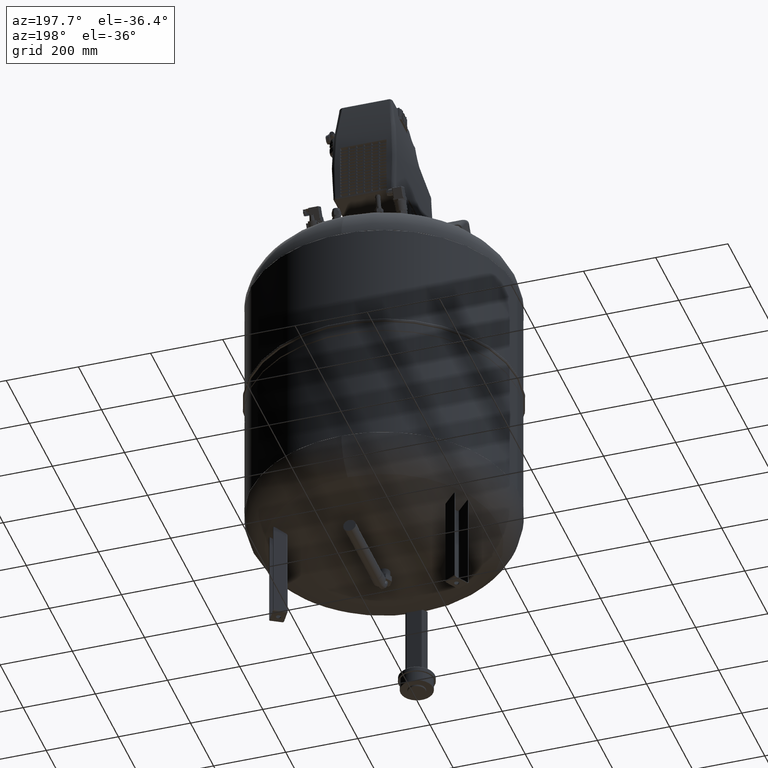
[diagram: clean part render]
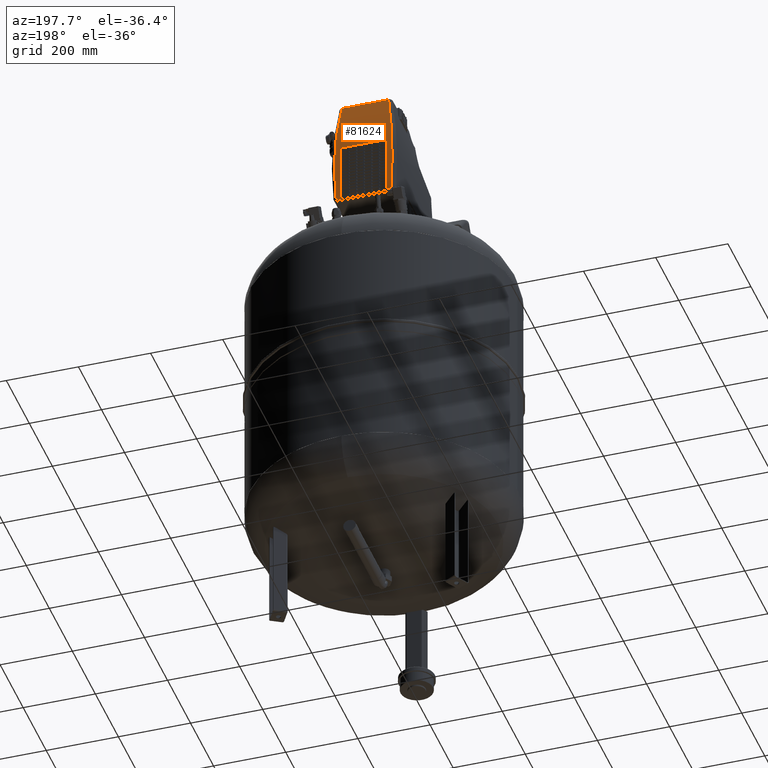
[diagram: same view with one face highlighted and labeled with its STEP entity id]
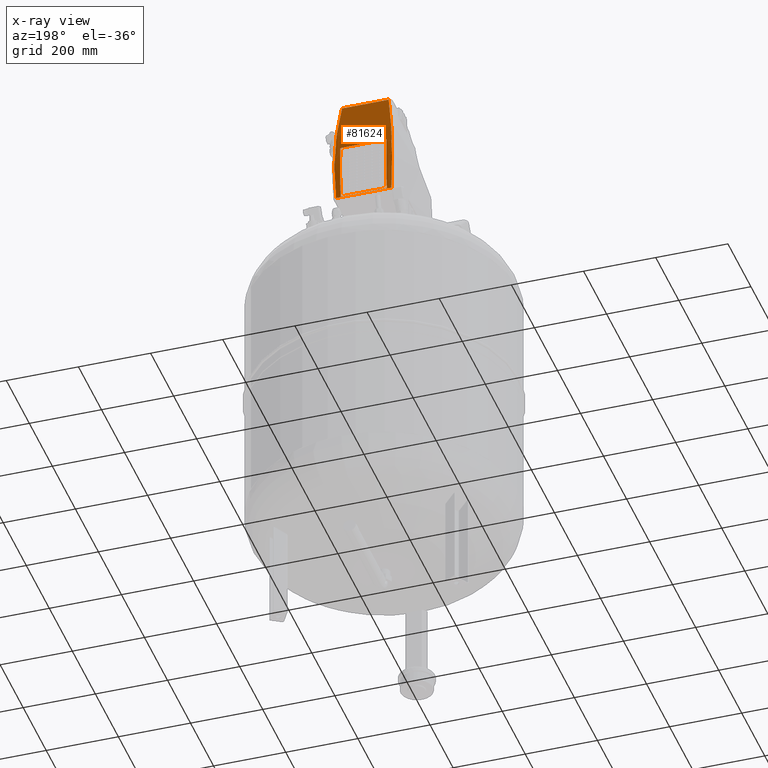
[diagram: x-ray of the same camera — body ghosted, the highlighted face saturated]
A machine part, auxiliary view. The second image highlights one B-rep face of the part: STEP entity #81624.
The next image is the same camera in x-ray: the body ghosted, the highlighted face saturated — about 0% of this face is hidden behind the body in this view.
In plain terms, the highlighted cylindrical surface (partial cylindrical patch) has radius 1111.2 mm, axis along (-1, 0, -0).
Its self-contained STEP definition (entity closure, byte-faithful):
#59000=CARTESIAN_POINT('',(64.0,177.2287176370983,1321.3749999999768));
#59001=VERTEX_POINT('',#59000);
#59002=CARTESIAN_POINT('',(64.0,177.41034305034501,1323.7070814433685));
#59003=VERTEX_POINT('',#59002);
#59004=CARTESIAN_POINT('',(63.999999999999794,-930.52512381521876,1408.8213649766601));
#59005=DIRECTION('',(1.0,-1.443338E-016,-2.696897E-017));
#59006=DIRECTION('',(-1.468318E-016,-0.982987474172969,-0.183672604432577));
#59007=AXIS2_PLACEMENT_3D('',#59004,#59005,#59006);
#59008=CIRCLE('',#59007,1111.2);
#59009=EDGE_CURVE('',#59001,#59003,#59008,.T.);
#59195=CARTESIAN_POINT('',(-63.999999999999972,177.2287176370983,1321.3749999999768));
#59196=VERTEX_POINT('',#59195);
#59240=CARTESIAN_POINT('',(-63.999999999999986,177.41034305034501,1323.7070814433685));
#59241=VERTEX_POINT('',#59240);
#59242=CARTESIAN_POINT('',(-64.000000000000199,-930.52512381521876,1408.8213649766601));
#59243=DIRECTION('',(-1.0,1.443338E-016,2.696897E-017));
#59244=DIRECTION('',(-1.468318E-016,-0.982987474172969,-0.183672604432577));
#59245=AXIS2_PLACEMENT_3D('',#59242,#59243,#59244);
#59246=CIRCLE('',#59245,1111.2);
#59247=EDGE_CURVE('',#59241,#59196,#59246,.T.);
#62172=CARTESIAN_POINT('',(64.000000000000028,176.53571733760853,1312.9999999999768));
#62173=VERTEX_POINT('',#62172);
#62174=CARTESIAN_POINT('',(63.999999999999794,-930.52512381521876,1408.8213649766601));
#62175=DIRECTION('',(1.0,-1.443338E-016,-2.696897E-017));
#62176=DIRECTION('',(-1.468318E-016,-0.982987474172969,-0.183672604432577));
#62177=AXIS2_PLACEMENT_3D('',#62174,#62175,#62176);
#62178=CIRCLE('',#62177,1111.2);
#62179=EDGE_CURVE('',#62173,#59001,#62178,.T.);
#64904=CARTESIAN_POINT('',(-63.999999999999972,176.53571733760853,1312.9999999999768));
#64905=VERTEX_POINT('',#64904);
#64912=CARTESIAN_POINT('',(-64.000000000000199,-930.52512381521876,1408.8213649766601));
#64913=DIRECTION('',(-1.0,1.443338E-016,2.696897E-017));
#64914=DIRECTION('',(-1.468318E-016,-0.982987474172969,-0.183672604432577));
#64915=AXIS2_PLACEMENT_3D('',#64912,#64913,#64914);
#64916=CIRCLE('',#64915,1111.2);
#64917=EDGE_CURVE('',#59196,#64905,#64916,.T.);
#65041=CARTESIAN_POINT('',(-64.0,178.93386927404245,1470.9999999999768));
#65042=VERTEX_POINT('',#65041);
#65043=CARTESIAN_POINT('',(-64.000000000000199,-930.52512381521876,1408.8213649766601));
#65044=DIRECTION('',(-1.0,1.443338E-016,2.696897E-017));
#65045=DIRECTION('',(-1.468318E-016,-0.982987474172969,-0.183672604432577));
#65046=AXIS2_PLACEMENT_3D('',#65043,#65044,#65045);
#65047=CIRCLE('',#65046,1111.2);
#65048=EDGE_CURVE('',#65042,#59241,#65047,.T.);
#65280=CARTESIAN_POINT('',(63.999999999999993,178.93386927404245,1470.9999999999768));
#65281=VERTEX_POINT('',#65280);
#65288=CARTESIAN_POINT('',(63.999999999999794,-930.52512381521876,1408.8213649766601));
#65289=DIRECTION('',(1.0,-1.443338E-016,-2.696897E-017));
#65290=DIRECTION('',(-1.468318E-016,-0.982987474172969,-0.183672604432577));
#65291=AXIS2_PLACEMENT_3D('',#65288,#65289,#65290);
#65292=CIRCLE('',#65291,1111.2);
#65293=EDGE_CURVE('',#59003,#65281,#65292,.T.);
#66136=CARTESIAN_POINT('',(-63.999999999999972,176.53571733760853,1312.9999999999768));
#66137=DIRECTION('',(1.0,0.0,0.0));
#66138=VECTOR('',#66137,128.0);
#66139=LINE('',#66136,#66138);
#66140=EDGE_CURVE('',#64905,#62173,#66139,.T.);
#66242=CARTESIAN_POINT('',(63.999999999999993,178.93386927404245,1470.9999999999768));
#66243=DIRECTION('',(-1.0,0.0,0.0));
#66244=VECTOR('',#66243,128.0);
#66245=LINE('',#66242,#66244);
#66246=EDGE_CURVE('',#65281,#65042,#66245,.T.);
#77046=CARTESIAN_POINT('',(-76.384999802056171,176.41034305034501,1311.5623695309084));
#77047=VERTEX_POINT('',#77046);
#77321=CARTESIAN_POINT('',(-64.497867433678181,161.77055748578508,1612.9183630221391));
#77322=VERTEX_POINT('',#77321);
#77589=CARTESIAN_POINT('',(-64.497712177989342,161.7703912038053,1612.9182272171124));
#77590=CARTESIAN_POINT('',(-65.58596871263444,163.09432185964309,1605.8331087223753));
#77591=CARTESIAN_POINT('',(-66.619618956435318,164.3514209494563,1598.7240784609489));
#77592=CARTESIAN_POINT('',(-70.32693664602175,168.8595021044147,1571.6896869328953));
#77593=CARTESIAN_POINT('',(-72.620868148881272,171.64746099985794,1551.6230882568509));
#77594=CARTESIAN_POINT('',(-75.610817736221833,175.28485368851025,1518.8686152013115));
#77595=CARTESIAN_POINT('',(-76.583668710914168,176.46939172602507,1506.235675068267));
#77596=CARTESIAN_POINT('',(-77.872803832144285,178.04206674848743,1485.6790324932394));
#77597=CARTESIAN_POINT('',(-78.29852563461705,178.56231292005785,1477.7658721539105));
#77598=CARTESIAN_POINT('',(-79.364581072381981,179.86850714136327,1454.0188638766958));
#77599=CARTESIAN_POINT('',(-79.794873627228583,180.4012509046876,1438.1581555967034));
#77600=CARTESIAN_POINT('',(-80.178384235423152,180.90121824700569,1396.8369358868026));
#77601=CARTESIAN_POINT('',(-79.687551471983767,180.33400995992307,1371.3561098379196));
#77602=CARTESIAN_POINT('',(-77.925058078397143,178.24505535131553,1334.4794286155884));
#77603=CARTESIAN_POINT('',(-77.227544790239364,177.41534560833284,1323.0037458422835));
#77604=CARTESIAN_POINT('',(-76.384767585786534,176.41009466379663,1311.5625078713692));
#77605=B_SPLINE_CURVE_WITH_KNOTS('',3,(#77589,#77590,#77591,#77592,#77593,#77594,#77595,#77596,#77597,#77598,#77599,#77600,#77601,#77602,#77603,#77604),.UNSPECIFIED.,.F.,.U.,(4,2,2,2,2,2,2,4),(3.184718705299012,5.347192661437038,11.38416998308162,15.157280809109483,17.515475075376898,22.231863607911727,29.778085259967447,33.196310500217194),.UNSPECIFIED.);
#77606=EDGE_CURVE('',#77322,#77047,#77605,.T.);
#79107=CARTESIAN_POINT('',(64.497867433677612,161.77055748578496,1612.9183630221391));
#79108=VERTEX_POINT('',#79107);
#79116=CARTESIAN_POINT('',(-64.497867433678181,161.77055748578496,1612.9183630221396));
#79117=DIRECTION('',(1.0,0.0,0.0));
#79118=VECTOR('',#79117,128.99573486735579);
#79119=LINE('',#79116,#79118);
#79120=EDGE_CURVE('',#77322,#79108,#79119,.T.);
#80562=CARTESIAN_POINT('',(76.384999802056001,176.41034305034501,1311.5623695309084));
#80563=VERTEX_POINT('',#80562);
#81372=CARTESIAN_POINT('',(76.384744479761395,176.41006993897818,1311.5625213620262));
#81373=CARTESIAN_POINT('',(77.238186933914221,177.42804185573928,1323.1485051287307));
#81374=CARTESIAN_POINT('',(77.942670447571686,178.2660062916747,1334.7697418236583));
#81375=CARTESIAN_POINT('',(79.468036054866133,180.07369607967135,1366.9049358864052));
#81376=CARTESIAN_POINT('',(79.97042575657261,180.65947692311241,1387.4626530663058));
#81377=CARTESIAN_POINT('',(80.016420036676976,180.684012932446,1420.8433042028212));
#81378=CARTESIAN_POINT('',(79.849159081921925,180.47078350202665,1433.6758115516477));
#81379=CARTESIAN_POINT('',(79.279097686127614,179.76502168409493,1454.4872951466691));
#81380=CARTESIAN_POINT('',(78.988367677968597,179.40747936758831,1462.4781919086029));
#81381=CARTESIAN_POINT('',(77.90156559778228,178.07607997878702,1486.4409867533025));
#81382=CARTESIAN_POINT('',(76.890327196833766,176.84281952637687,1502.4018267017063));
#81383=CARTESIAN_POINT('',(73.525521901231912,172.74681238394592,1543.7690369608536));
#81384=CARTESIAN_POINT('',(70.729315515856143,169.34896413188031,1569.0960784980141));
#81385=CARTESIAN_POINT('',(66.371847195133199,164.05007750569976,1600.4226891664453));
#81386=CARTESIAN_POINT('',(65.456099528963449,162.93632500315542,1606.6794378251757));
#81387=CARTESIAN_POINT('',(64.497952043472623,161.77068162904314,1612.9178623288894));
#81388=B_SPLINE_CURVE_WITH_KNOTS('',3,(#81372,#81373,#81374,#81375,#81376,#81377,#81378,#81379,#81380,#81381,#81382,#81383,#81384,#81385,#81386,#81387),.UNSPECIFIED.,.F.,.U.,(4,2,2,2,2,2,2,4),(4.75619147981115,8.217448127657899,14.309950553879069,18.117764570267301,20.497648330509946,25.257415850995237,32.8730438837717,34.780526932639958),.UNSPECIFIED.);
#81389=EDGE_CURVE('',#80563,#79108,#81388,.T.);
#81598=CARTESIAN_POINT('',(-2.016380E-013,-930.52512381521876,1408.8213649766601));
#81599=DIRECTION('',(-1.0,1.836970E-016,-1.836970E-016));
#81600=DIRECTION('',(-1.468318E-016,-0.982987474172969,-0.183672604432577));
#81601=AXIS2_PLACEMENT_3D('',#81598,#81599,#81600);
#81602=CYLINDRICAL_SURFACE('',#81601,1111.2000000000003);
#81603=ORIENTED_EDGE('',*,*,#77606,.F.);
#81604=ORIENTED_EDGE('',*,*,#79120,.T.);
#81605=ORIENTED_EDGE('',*,*,#81389,.F.);
#81606=CARTESIAN_POINT('',(-76.384999802056171,176.41034305034489,1311.5623695309084));
#81607=DIRECTION('',(1.0,0.0,0.0));
#81608=VECTOR('',#81607,152.76999960411217);
#81609=LINE('',#81606,#81608);
#81610=EDGE_CURVE('',#77047,#80563,#81609,.T.);
#81611=ORIENTED_EDGE('',*,*,#81610,.F.);
#81612=EDGE_LOOP('',(#81603,#81604,#81605,#81611));
#81613=FACE_OUTER_BOUND('',#81612,.T.);
#81614=ORIENTED_EDGE('',*,*,#65048,.T.);
#81615=ORIENTED_EDGE('',*,*,#59247,.T.);
#81616=ORIENTED_EDGE('',*,*,#64917,.T.);
#81617=ORIENTED_EDGE('',*,*,#66140,.T.);
#81618=ORIENTED_EDGE('',*,*,#62179,.T.);
#81619=ORIENTED_EDGE('',*,*,#59009,.T.);
#81620=ORIENTED_EDGE('',*,*,#65293,.T.);
#81621=ORIENTED_EDGE('',*,*,#66246,.T.);
#81622=EDGE_LOOP('',(#81614,#81615,#81616,#81617,#81618,#81619,#81620,#81621));
#81623=FACE_BOUND('',#81622,.T.);
#81624=ADVANCED_FACE('',(#81613,#81623),#81602,.T.);